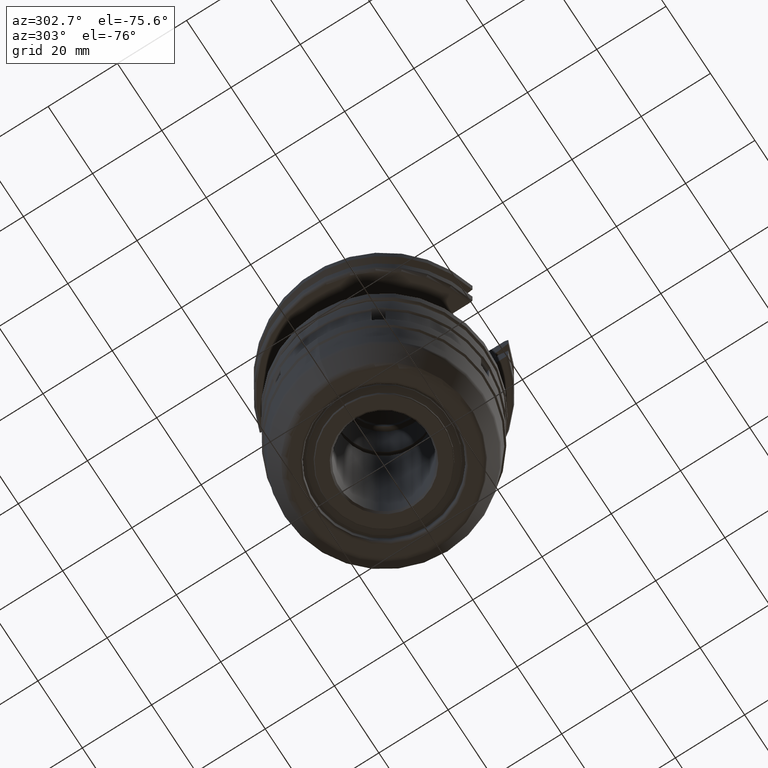
[diagram: clean part render]
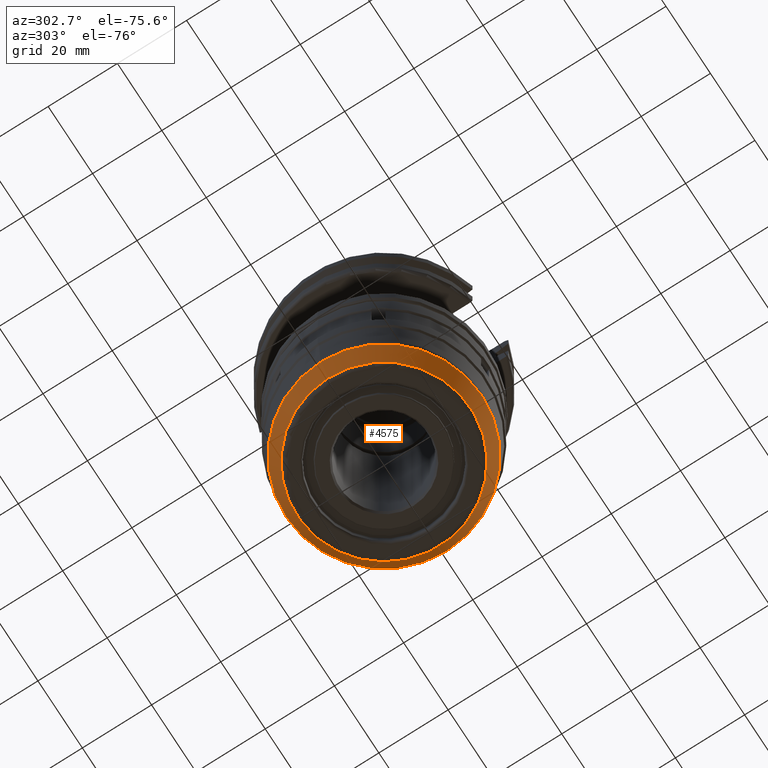
[diagram: same view with one face highlighted and labeled with its STEP entity id]
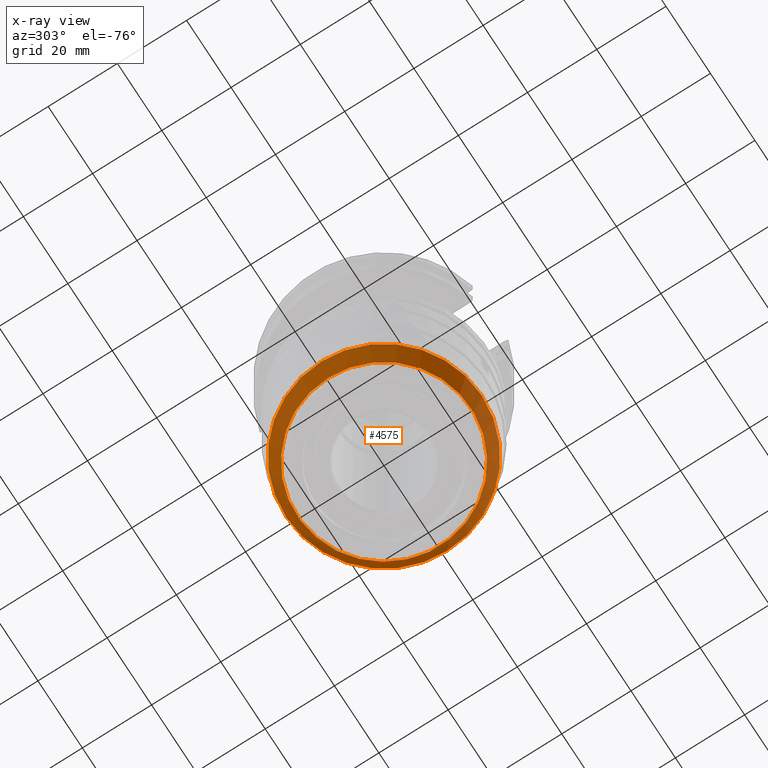
[diagram: x-ray of the same camera — body ghosted, the highlighted face saturated]
A machine part, auxiliary view. The second image highlights one B-rep face of the part: STEP entity #4575.
The next image is the same camera in x-ray: the body ghosted, the highlighted face saturated — about 0% of this face is hidden behind the body in this view.
In plain terms, the highlighted conical surface has half-angle 30 deg.
Its self-contained STEP definition (entity closure, byte-faithful):
#143 = ORIENTED_EDGE ( 'NONE', *, *, #1301, .F. ) ;
#362 = AXIS2_PLACEMENT_3D ( 'NONE', #2258, #3679, #472 ) ;
#472 = DIRECTION ( 'NONE',  ( 1.000000000000000000, 0.000000000000000000, 0.000000000000000000 ) ) ;
#534 = CARTESIAN_POINT ( 'NONE',  ( 0.000000000000000000, 1.483994170672545651E-15, -79.67200316158633200 ) ) ;
#792 = EDGE_CURVE ( 'NONE', #2046, #2046, #4368, .T. ) ;
#1301 = EDGE_CURVE ( 'NONE', #2858, #2858, #3648, .T. ) ;
#1871 = CONICAL_SURFACE ( 'NONE', #362, 25.07735054550613540, 0.5235987001601085655 ) ;
#2046 = VERTEX_POINT ( 'NONE', #3762 ) ;
#2258 = CARTESIAN_POINT ( 'NONE',  ( 0.000000000000000000, 1.483994170672545651E-15, -85.20000016158634537 ) ) ;
#2312 = DIRECTION ( 'NONE',  ( -0.000000000000000000, -0.000000000000000000, -1.000000000000000000 ) ) ;
#2382 = AXIS2_PLACEMENT_3D ( 'NONE', #4046, #2312, #2693 ) ;
#2486 = ORIENTED_EDGE ( 'NONE', *, *, #792, .T. ) ;
#2693 = DIRECTION ( 'NONE',  ( -1.000000000000000000, 0.000000000000000000, 0.000000000000000000 ) ) ;
#2858 = VERTEX_POINT ( 'NONE', #3846 ) ;
#2953 = AXIS2_PLACEMENT_3D ( 'NONE', #534, #3570, #4229 ) ;
#3296 = FACE_BOUND ( 'NONE', #4208, .T. ) ;
#3570 = DIRECTION ( 'NONE',  ( -0.000000000000000000, -0.000000000000000000, -1.000000000000000000 ) ) ;
#3648 = CIRCLE ( 'NONE', #2382, 25.07735054550613540 ) ;
#3679 = DIRECTION ( 'NONE',  ( 0.000000000000000000, 0.000000000000000000, 1.000000000000000000 ) ) ;
#3762 = CARTESIAN_POINT ( 'NONE',  ( -28.26894054550615465, 1.483994170672545651E-15, -79.67200316158633200 ) ) ;
#3846 = CARTESIAN_POINT ( 'NONE',  ( -25.07735054550613540, 1.483994170672545651E-15, -85.20000016158634537 ) ) ;
#4046 = CARTESIAN_POINT ( 'NONE',  ( 0.000000000000000000, 1.483994170672545651E-15, -85.20000016158634537 ) ) ;
#4125 = EDGE_LOOP ( 'NONE', ( #2486 ) ) ;
#4208 = EDGE_LOOP ( 'NONE', ( #143 ) ) ;
#4229 = DIRECTION ( 'NONE',  ( -1.000000000000000000, 0.000000000000000000, 0.000000000000000000 ) ) ;
#4368 = CIRCLE ( 'NONE', #2953, 28.26894054550615465 ) ;
#4396 = FACE_OUTER_BOUND ( 'NONE', #4125, .T. ) ;
#4575 = ADVANCED_FACE ( 'NONE', ( #4396, #3296 ), #1871, .T. ) ;